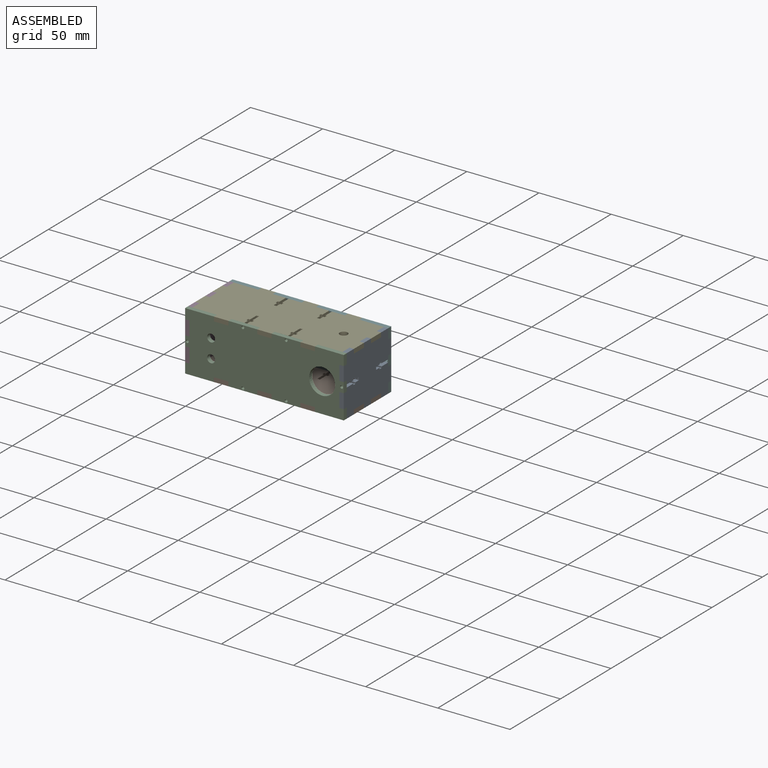
[diagram: assembled view]
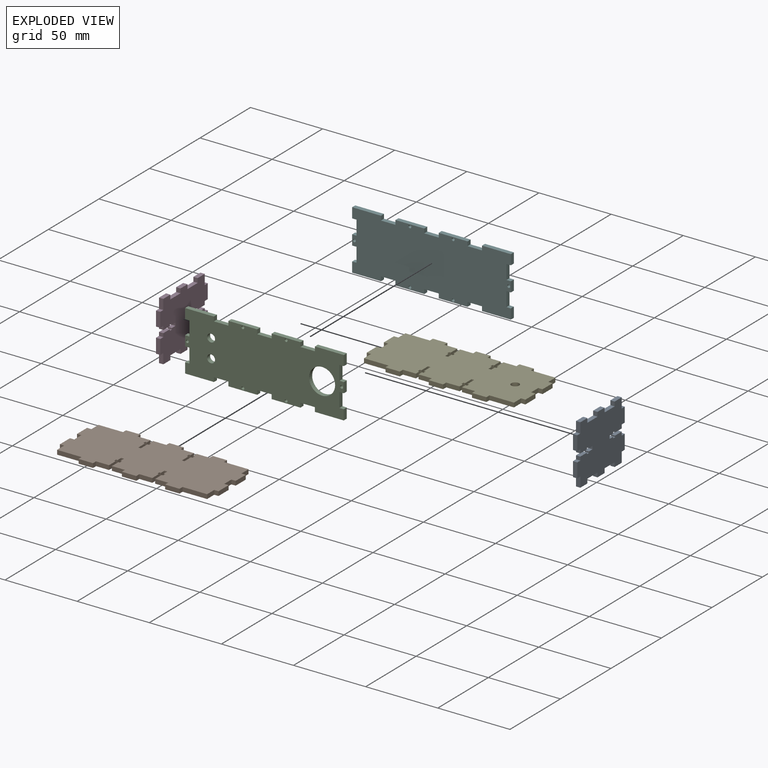
[diagram: exploded view]
GUIDED TOUR — MATED ASSEMBLY (Onshape document a1cde08430a154bda091c33c, AutoMate assembly a1cde08430a154bda091c33c_72b9e4adab7d334c28b5a0ce_06aeb45ed848af241ee4c1e9_default)

This assembly has 6 components, labeled P0..P5 below (a component is one placed occurrence of a part; the same part can appear more than once), held together by 5 mates. A mate is a constraint between two components; its type names the relative motion it leaves free:
  FASTENED — locks the two components together rigidly (no relative motion).
Axis/direction vectors are unit vectors and 'through' points are millimeter coordinates, both in the assembly's world frame.

MATES
  1. FASTENED "Fastened 5": P2 <-> P1, direction (0.000, 1.000, 0.000) through (-33.03, -67.44, 5.51) mm
  2. FASTENED "Fastened 2": P4 <-> P5, direction (1.000, 0.000, 0.000) through (-103.03, -20.44, 43.51) mm
  3. FASTENED "Fastened 4": P3 <-> P5, direction (1.000, 0.000, 0.000) through (-120.03, -20.44, 12.51) mm
  4. FASTENED "Fastened 3": P1 <-> P5, direction (0.000, 1.000, 0.000) through (-103.03, -20.44, 8.51) mm
  5. FASTENED "Fastened 1": P0 <-> P5, direction (-1.000, 0.000, 0.000) through (-16.03, -20.44, 12.51) mm

ASSEMBLY ORDER
  1. P2 — the base component [order verified]
  2. P3 [order verified]
  3. P1 [order verified]
  4. P4 [order verified]
  5. P5 [order verified]
  6. P0 [order verified]
Order-tag legend:
  [order verified] — this step's position reverses a verified removal order: the component was checked to insert without passing through the ones already placed.

Of the 6 components, 6 carry the full construction recipe — the FeatureScript program that regenerates the part's solid from scratch; the rest are supplied as boundary geometry only.
Each toured component is shown spotlighted twice — in the assembled view, then in the exploded view, where a leader line traces a displaced component back to its assembled socket (saturated green if recipe-attached, orange if geometry-only; every other component desaturated gray) — followed by its recipe or geometry summary and the mates that hold it.
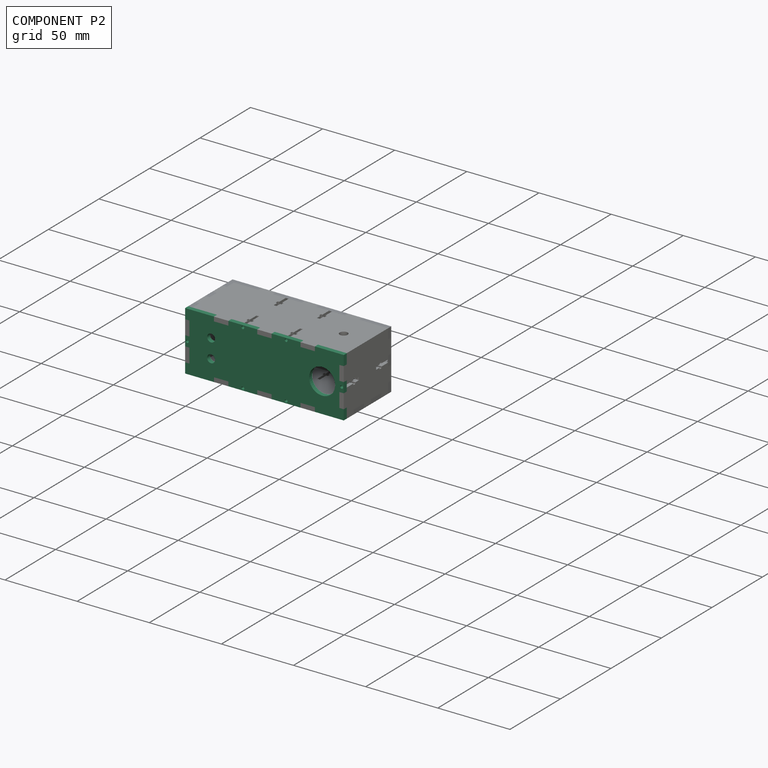
[diagram: component P2 — assembled]
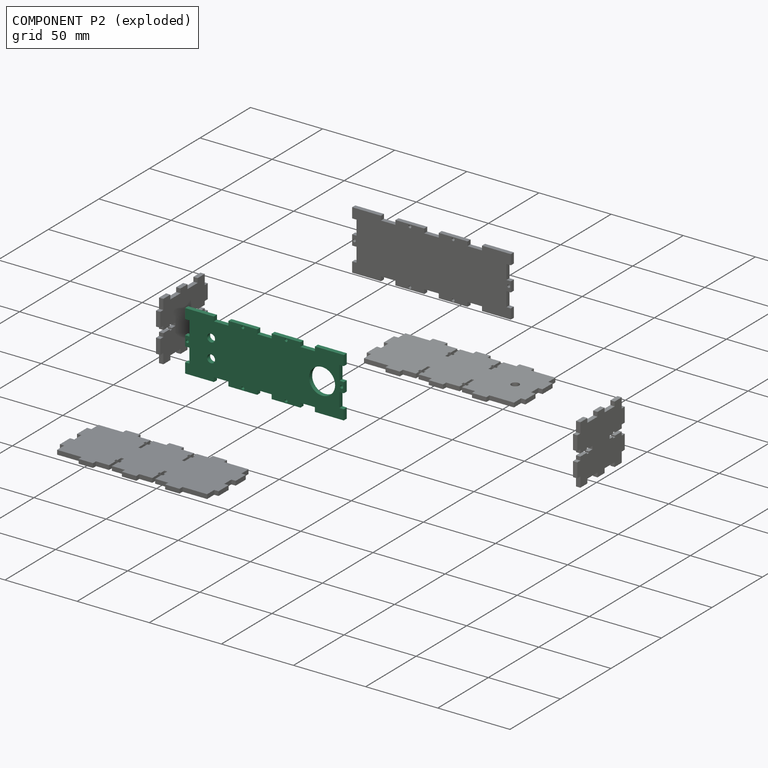
[diagram: component P2 — exploded]
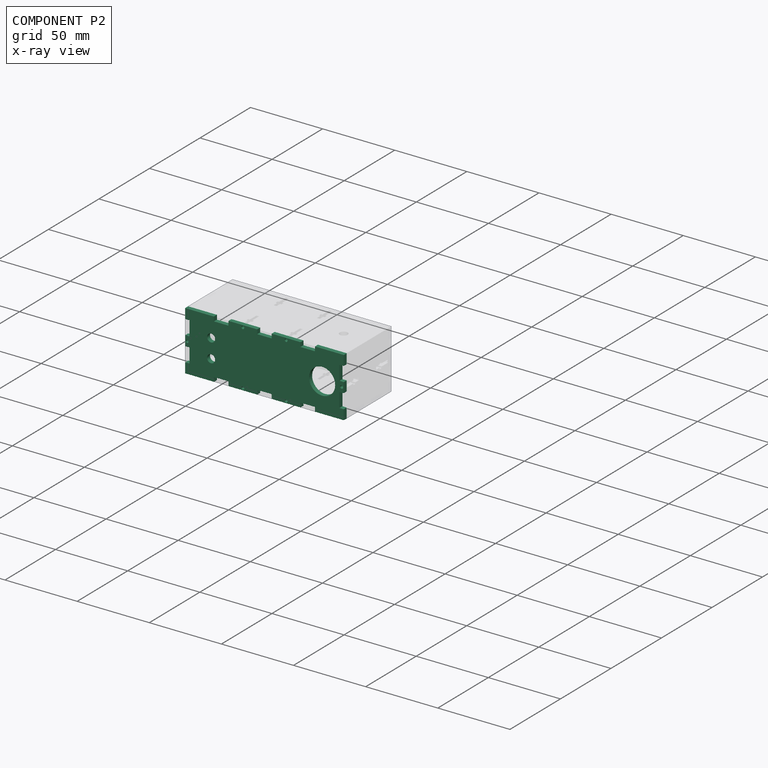
[diagram: component P2 — x-ray view]
COMPONENT P2 — recipe-attached (CADFS 00235639, mesh-verified: the recipe's output STEP matches this component's geometry to below the mesh-comparison resolution (tessellation chordal tolerance ~0.176 mm)).
Held by: FASTENED mate "Fastened 5" to P1.
Construction recipe (FeatureScript — the CAD program that rebuilds this solid; sketch coordinates are in the units given by the * unit suffixes, e.g. mm):

FeatureScript 1511;
import(path : "onshape/std/geometry.fs", version : "1511.0");
import(path : "onshape/std/common.fs", version : "1511.0");
const mm = millimeter;
const VERTEX = EntityType.VERTEX;
const EDGE = EntityType.EDGE;
const FACE = EntityType.FACE;
const BODY = EntityType.BODY;
function v(x, y){return vector(x, y);}
function OD(order){return orderDisambiguation(order);}
function OSD(set){return originalSetDisambiguation(set);}
function TD(topology){return topologyDisambiguation(topology);}
function TDD(query){return trueDependencyDisambiguation(query);}
function sQuery(a, b, c) {return sketchEntityQuery(a, b, c);}

annotation { "Feature Type Name" : "Feature", "Feature Type Description" : "" }
export const myFeature = defineFeature(function(context is Context, id is Id, definition is map)
    precondition{}
    {
        {
            var Q0;
            Q0=qCreatedBy(makeId("Front.planeOp"),FACE);
            var sketch = newSketch(context, id + "F0", { "sketchPlane" : qUnion([Q0])});
            skLineSegment(sketch, "E0", {"start": v(54.92, -20.79) * mm, "end": v(54.92, -13.79) * mm});
            skLineSegment(sketch, "E1", {"start": v(54.92, -13.79) * mm, "end": v(51.92, -13.79) * mm});
            skLineSegment(sketch, "E2", {"start": v(51.92, -13.79) * mm, "end": v(51.92, -3.79) * mm});
            skLineSegment(sketch, "E3", {"start": v(51.92, -3.79) * mm, "end": v(54.92, -3.79) * mm});
            skLineSegment(sketch, "E4", {"start": v(54.92, -3.79) * mm, "end": v(54.92, 3.21) * mm});
            skLineSegment(sketch, "E5", {"start": v(54.92, 3.21) * mm, "end": v(51.92, 3.21) * mm});
            skLineSegment(sketch, "E6", {"start": v(51.92, 3.21) * mm, "end": v(51.92, 13.21) * mm});
            skLineSegment(sketch, "E7", {"start": v(51.92, 13.21) * mm, "end": v(54.92, 13.21) * mm});
            skLineSegment(sketch, "E8", {"start": v(54.92, 13.21) * mm, "end": v(54.92, 20.21) * mm});
            skLineSegment(sketch, "E9", {"start": v(54.92, 20.21) * mm, "end": v(34.92, 20.21) * mm});
            skLineSegment(sketch, "E10", {"start": v(34.92, 20.21) * mm, "end": v(34.92, 17.21) * mm});
            skLineSegment(sketch, "E11", {"start": v(34.92, 17.21) * mm, "end": v(24.92, 17.21) * mm});
            skLineSegment(sketch, "E12", {"start": v(24.92, 17.21) * mm, "end": v(24.92, 20.21) * mm});
            skLineSegment(sketch, "E13", {"start": v(24.92, 20.21) * mm, "end": v(4.92, 20.21) * mm});
            skLineSegment(sketch, "E14", {"start": v(4.92, 20.21) * mm, "end": v(4.92, 17.21) * mm});
            skLineSegment(sketch, "E15", {"start": v(4.92, 17.21) * mm, "end": v(-0.08, 17.21) * mm});
            skLineSegment(sketch, "E16", {"start": v(54.92, -20.79) * mm, "end": v(34.92, -20.79) * mm});
            skLineSegment(sketch, "E17", {"start": v(34.92, -20.79) * mm, "end": v(34.92, -17.79) * mm});
            skLineSegment(sketch, "E18", {"start": v(34.92, -17.79) * mm, "end": v(24.92, -17.79) * mm});
            skLineSegment(sketch, "E19", {"start": v(24.92, -17.79) * mm, "end": v(24.92, -20.79) * mm});
            skLineSegment(sketch, "E20", {"start": v(24.92, -20.79) * mm, "end": v(4.92, -20.79) * mm});
            skLineSegment(sketch, "E21", {"start": v(4.92, -17.79) * mm, "end": v(-0.08, -17.79) * mm});
            skLineSegment(sketch, "E22", {"start": v(4.92, -17.79) * mm, "end": v(4.92, -20.79) * mm});
            skLineSegment(sketch, "E23", {"start": v(-0.08, 17.21) * mm, "end": v(-0.08, -17.79) * mm, "construction": true});
            skLineSegment(sketch, "E24.MirrorCS", {"start": v(-5.08, 17.21) * mm, "end": v(-0.08, 17.21) * mm});
            skLineSegment(sketch, "E25.MirrorCS", {"start": v(-5.08, -17.79) * mm, "end": v(-0.08, -17.79) * mm});
            skLineSegment(sketch, "E26.MirrorCS", {"start": v(-5.08, 20.21) * mm, "end": v(-5.08, 17.21) * mm});
            skLineSegment(sketch, "E27.MirrorCS", {"start": v(-5.08, -17.79) * mm, "end": v(-5.08, -20.79) * mm});
            skLineSegment(sketch, "E28.MirrorCS", {"start": v(-25.08, -17.79) * mm, "end": v(-25.08, -20.79) * mm});
            skLineSegment(sketch, "E29.MirrorCS", {"start": v(-25.08, 17.21) * mm, "end": v(-25.08, 20.21) * mm});
            skLineSegment(sketch, "E30.MirrorCS", {"start": v(-55.08, -13.79) * mm, "end": v(-52.08, -13.79) * mm});
            skLineSegment(sketch, "E31.MirrorCS", {"start": v(-35.08, -20.79) * mm, "end": v(-35.08, -17.79) * mm});
            skLineSegment(sketch, "E32.MirrorCS", {"start": v(-52.08, -3.79) * mm, "end": v(-55.08, -3.79) * mm});
            skLineSegment(sketch, "E33.MirrorCS", {"start": v(-55.08, 3.21) * mm, "end": v(-52.08, 3.21) * mm});
            skLineSegment(sketch, "E34.MirrorCS", {"start": v(-52.08, 13.21) * mm, "end": v(-55.08, 13.21) * mm});
            skLineSegment(sketch, "E35.MirrorCS", {"start": v(-35.08, 20.21) * mm, "end": v(-35.08, 17.21) * mm});
            skLineSegment(sketch, "E36.MirrorCS", {"start": v(-25.08, -20.79) * mm, "end": v(-5.08, -20.79) * mm});
            skLineSegment(sketch, "E37.MirrorCS", {"start": v(-55.08, -20.79) * mm, "end": v(-35.08, -20.79) * mm});
            skLineSegment(sketch, "E38.MirrorCS", {"start": v(-55.08, -3.79) * mm, "end": v(-55.08, 3.21) * mm});
            skLineSegment(sketch, "E39.MirrorCS", {"start": v(-55.08, -20.79) * mm, "end": v(-55.08, -13.79) * mm});
            skLineSegment(sketch, "E40.MirrorCS", {"start": v(-25.08, 20.21) * mm, "end": v(-5.08, 20.21) * mm});
            skLineSegment(sketch, "E41.MirrorCS", {"start": v(-35.08, -17.79) * mm, "end": v(-25.08, -17.79) * mm});
            skLineSegment(sketch, "E42.MirrorCS", {"start": v(-55.08, 20.21) * mm, "end": v(-35.08, 20.21) * mm});
            skLineSegment(sketch, "E43.MirrorCS", {"start": v(-55.08, 13.21) * mm, "end": v(-55.08, 20.21) * mm});
            skLineSegment(sketch, "E44.MirrorCS", {"start": v(-52.08, -13.79) * mm, "end": v(-52.08, -3.79) * mm});
            skLineSegment(sketch, "E45.MirrorCS", {"start": v(-35.08, 17.21) * mm, "end": v(-25.08, 17.21) * mm});
            skLineSegment(sketch, "E46.MirrorCS", {"start": v(-52.08, 3.21) * mm, "end": v(-52.08, 13.21) * mm});
            skPoint(sketch, "E47.centerSnap0", {"position": v(-53.58, 3.21) * mm});
            skPoint(sketch, "E47.centerSnap1", {"position": v(-55.08, -0.29) * mm});
            skPoint(sketch, "E48.centerSnap0", {"position": v(-15.08, -20.79) * mm});
            skPoint(sketch, "E48.centerSnap1", {"position": v(-25.08, -19.29) * mm});
            skPoint(sketch, "E49.centerSnap0", {"position": v(4.92, -19.29) * mm});
            skPoint(sketch, "E49.centerSnap1", {"position": v(14.92, -20.79) * mm});
            skPoint(sketch, "E50.centerSnap0", {"position": v(-5.08, 18.71) * mm});
            skPoint(sketch, "E50.centerSnap1", {"position": v(-15.08, 20.21) * mm});
            skCircle(sketch, "E51", {"center": v(-15.08, 18.71) * mm, "radius": 1 * mm});
            skCircle(sketch, "E52", {"center": v(53.42, -0.29) * mm, "radius": 1 * mm});
            skPoint(sketch, "E52.centerSnap0", {"position": v(54.92, -0.29) * mm});
            skPoint(sketch, "E52.centerSnap1", {"position": v(53.42, -3.79) * mm});
            skPoint(sketch, "E53.centerSnap0", {"position": v(4.92, 18.71) * mm});
            skPoint(sketch, "E53.centerSnap1", {"position": v(14.92, 20.21) * mm});
            skCircle(sketch, "E54", {"center": v(14.92, 18.71) * mm, "radius": 1 * mm});
            skPoint(sketch, "E54.centerSnap0", {"position": v(24.92, 18.71) * mm});
            skCircle(sketch, "E55", {"center": v(-53.58, -0.29) * mm, "radius": 1 * mm});
            skCircle(sketch, "E56", {"center": v(-15.08, -19.29) * mm, "radius": 1 * mm});
            skCircle(sketch, "E57", {"center": v(14.92, -19.29) * mm, "radius": 1 * mm});
            skCircle(sketch, "E58", {"center": v(39.92, -0.29) * mm, "radius": 9 * mm});
            skCircle(sketch, "E59", {"center": v(-37.08, -6.79) * mm, "radius": 2.75 * mm});
            skCircle(sketch, "E60", {"center": v(-37.08, 6.21) * mm, "radius": 2.75 * mm});
            skSolve(sketch);
        }
        {
            var Q0;
            Q0 = qSketchRegion(id + "F0", true);
            extrude(context, id + "F1", {"entities" : qUnion([Q0]), "depth" : 3 * mm});
        }
    });
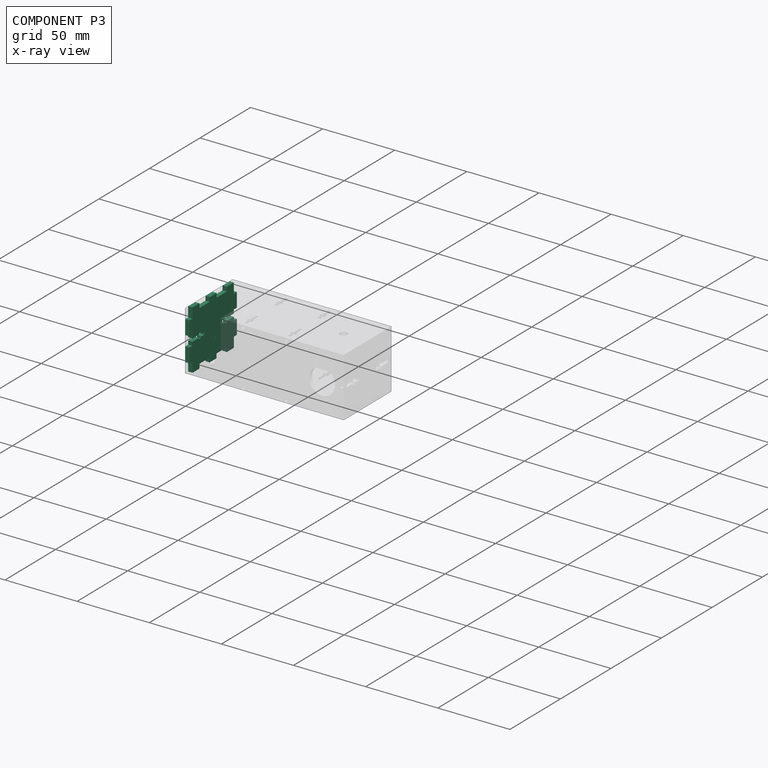
[diagram: component P3 — x-ray view]
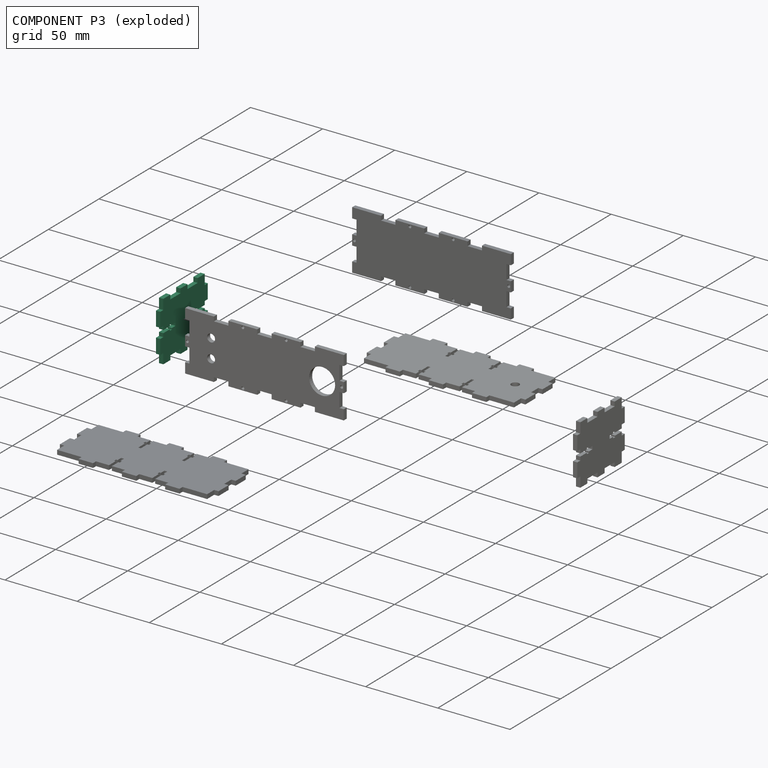
[diagram: component P3 — exploded]
COMPONENT P3 — same part as P0 (CADFS 00235637); its construction recipe is shown at P0.
Held by: FASTENED mate "Fastened 4" to P5.
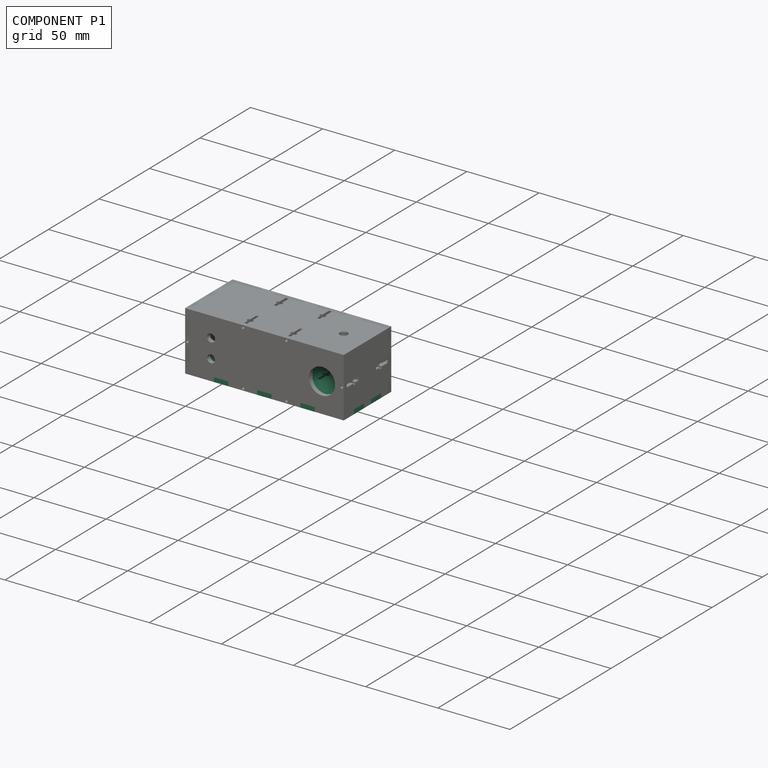
[diagram: component P1 — assembled]
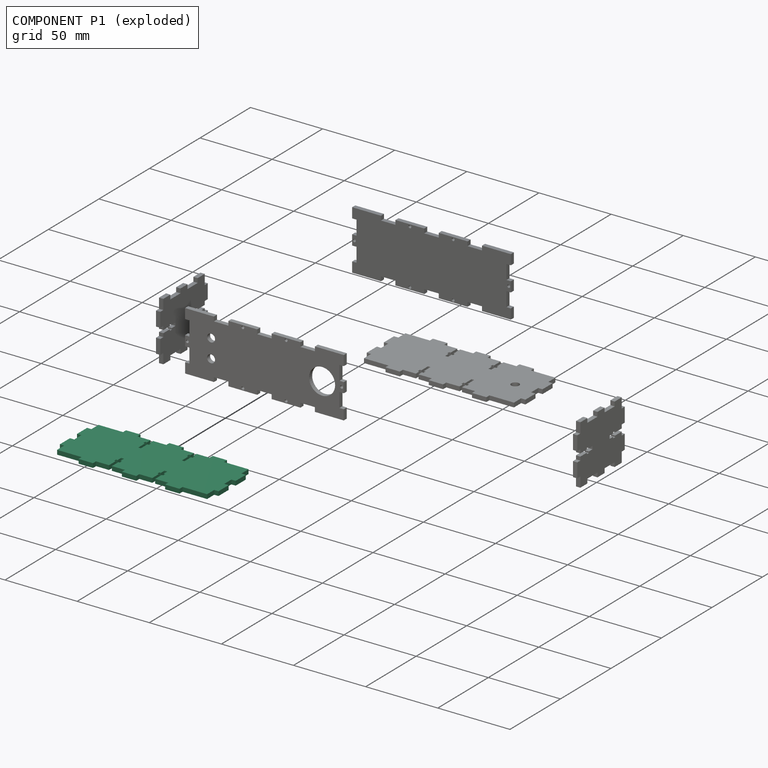
[diagram: component P1 — exploded]
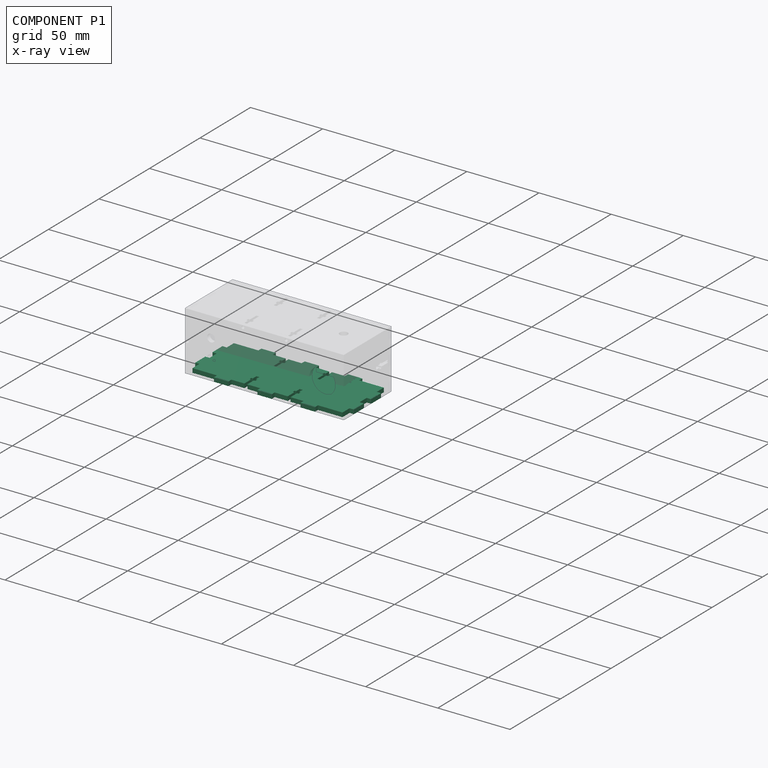
[diagram: component P1 — x-ray view]
COMPONENT P1 — recipe-attached (CADFS 00235641, mesh-verified: the recipe's output STEP matches this component's geometry to below the mesh-comparison resolution (tessellation chordal tolerance ~0.179 mm)).
Held by: FASTENED mate "Fastened 5" to P2; FASTENED mate "Fastened 3" to P5.
Construction recipe (FeatureScript — the CAD program that rebuilds this solid; sketch coordinates are in the units given by the * unit suffixes, e.g. mm):

FeatureScript 1511;
import(path : "onshape/std/geometry.fs", version : "1511.0");
import(path : "onshape/std/common.fs", version : "1511.0");
const mm = millimeter;
const VERTEX = EntityType.VERTEX;
const EDGE = EntityType.EDGE;
const FACE = EntityType.FACE;
const BODY = EntityType.BODY;
function v(x, y){return vector(x, y);}
function OD(order){return orderDisambiguation(order);}
function OSD(set){return originalSetDisambiguation(set);}
function TD(topology){return topologyDisambiguation(topology);}
function TDD(query){return trueDependencyDisambiguation(query);}
function sQuery(a, b, c) {return sketchEntityQuery(a, b, c);}

annotation { "Feature Type Name" : "Feature", "Feature Type Description" : "" }
export const myFeature = defineFeature(function(context is Context, id is Id, definition is map)
    precondition{}
    {
        {
            var Q0;
            Q0=qCreatedBy(makeId("Right.planeOp"),FACE);
            var sketch = newSketch(context, id + "F0", { "sketchPlane" : qUnion([Q0])});
            skLineSegment(sketch, "E0", {"start": v(50.59, -20.79) * mm, "end": v(50.59, -13.79) * mm});
            skLineSegment(sketch, "E1", {"start": v(50.59, -13.79) * mm, "end": v(53.59, -13.79) * mm});
            skLineSegment(sketch, "E2", {"start": v(53.59, -13.79) * mm, "end": v(53.59, -3.79) * mm});
            skLineSegment(sketch, "E3", {"start": v(53.59, -3.79) * mm, "end": v(50.59, -3.79) * mm});
            skLineSegment(sketch, "E4", {"start": v(50.59, -3.79) * mm, "end": v(50.59, 3.21) * mm});
            skLineSegment(sketch, "E5", {"start": v(50.59, 3.21) * mm, "end": v(53.59, 3.21) * mm});
            skLineSegment(sketch, "E6", {"start": v(53.59, 3.21) * mm, "end": v(53.59, 13.21) * mm});
            skLineSegment(sketch, "E7", {"start": v(53.59, 13.21) * mm, "end": v(50.59, 13.21) * mm});
            skLineSegment(sketch, "E8", {"start": v(50.59, 13.21) * mm, "end": v(50.59, 20.21) * mm});
            skLineSegment(sketch, "E9", {"start": v(50.59, 20.21) * mm, "end": v(33.59, 20.21) * mm});
            skLineSegment(sketch, "E10", {"start": v(33.59, 20.21) * mm, "end": v(33.59, 23.21) * mm});
            skLineSegment(sketch, "E11", {"start": v(23.59, 23.21) * mm, "end": v(23.59, 20.21) * mm});
            skLineSegment(sketch, "E12", {"start": v(3.59, 20.21) * mm, "end": v(3.59, 23.21) * mm});
            skLineSegment(sketch, "E13", {"start": v(50.59, -20.79) * mm, "end": v(33.59, -20.79) * mm});
            skLineSegment(sketch, "E14", {"start": v(33.59, -20.79) * mm, "end": v(33.59, -23.79) * mm});
            skLineSegment(sketch, "E15", {"start": v(23.59, -23.79) * mm, "end": v(23.59, -20.79) * mm});
            skLineSegment(sketch, "E16", {"start": v(23.59, -20.79) * mm, "end": v(14.59, -20.79) * mm});
            skLineSegment(sketch, "E17", {"start": v(3.59, -20.79) * mm, "end": v(3.59, -23.79) * mm});
            skLineSegment(sketch, "E18.MirrorCS", {"start": v(-6.41, 20.21) * mm, "end": v(-6.41, 23.21) * mm});
            skLineSegment(sketch, "E19.MirrorCS", {"start": v(-53.41, -13.79) * mm, "end": v(-56.41, -13.79) * mm});
            skLineSegment(sketch, "E20.MirrorCS", {"start": v(-36.41, -20.79) * mm, "end": v(-36.41, -23.79) * mm});
            skLineSegment(sketch, "E21.MirrorCS", {"start": v(-56.41, -3.79) * mm, "end": v(-53.41, -3.79) * mm});
            skLineSegment(sketch, "E22.MirrorCS", {"start": v(-26.41, -23.79) * mm, "end": v(-26.41, -20.79) * mm});
            skLineSegment(sketch, "E23.MirrorCS", {"start": v(-53.41, 3.21) * mm, "end": v(-56.41, 3.21) * mm});
            skLineSegment(sketch, "E24.MirrorCS", {"start": v(-56.41, 13.21) * mm, "end": v(-53.41, 13.21) * mm});
            skLineSegment(sketch, "E25.MirrorCS", {"start": v(-36.41, 20.21) * mm, "end": v(-36.41, 23.21) * mm});
            skLineSegment(sketch, "E26.MirrorCS", {"start": v(-26.41, 23.21) * mm, "end": v(-26.41, 20.21) * mm});
            skLineSegment(sketch, "E27.MirrorCS", {"start": v(-6.41, -20.79) * mm, "end": v(-6.41, -23.79) * mm});
            skLineSegment(sketch, "E28.MirrorCS", {"start": v(-53.41, -20.79) * mm, "end": v(-36.41, -20.79) * mm});
            skLineSegment(sketch, "E29.MirrorCS", {"start": v(-53.41, -20.79) * mm, "end": v(-53.41, -13.79) * mm});
            skLineSegment(sketch, "E30.MirrorCS", {"start": v(-26.41, 20.21) * mm, "end": v(-17.41, 20.21) * mm});
            skLineSegment(sketch, "E31.MirrorCS", {"start": v(-56.41, -13.79) * mm, "end": v(-56.41, -3.79) * mm});
            skLineSegment(sketch, "E32.MirrorCS", {"start": v(-36.41, -23.79) * mm, "end": v(-26.41, -23.79) * mm});
            skLineSegment(sketch, "E33.MirrorCS", {"start": v(-26.41, -20.79) * mm, "end": v(-17.41, -20.79) * mm});
            skLineSegment(sketch, "E34.MirrorCS", {"start": v(-53.41, -3.79) * mm, "end": v(-53.41, 3.21) * mm});
            skLineSegment(sketch, "E35.MirrorCS", {"start": v(-56.41, 3.21) * mm, "end": v(-56.41, 13.21) * mm});
            skLineSegment(sketch, "E36.MirrorCS", {"start": v(-53.41, 13.21) * mm, "end": v(-53.41, 20.21) * mm});
            skLineSegment(sketch, "E37.MirrorCS", {"start": v(-53.41, 20.21) * mm, "end": v(-36.41, 20.21) * mm});
            skLineSegment(sketch, "E38.MirrorCS", {"start": v(-36.41, 23.21) * mm, "end": v(-26.41, 23.21) * mm});
            skPoint(sketch, "E39.centerSnap0", {"position": v(50.59, -0.29) * mm});
            skPoint(sketch, "E39.centerSnap1", {"position": v(42.09, -20.79) * mm});
            skLineSegment(sketch, "E40.top", {"start": v(-17.41, 8.21) * mm, "end": v(-15.63, 8.21) * mm});
            skLineSegment(sketch, "E41", {"start": v(-6.41, -23.79) * mm, "end": v(3.59, -23.79) * mm});
            skLineSegment(sketch, "E42", {"start": v(33.59, -23.79) * mm, "end": v(23.59, -23.79) * mm});
            skLineSegment(sketch, "E43", {"start": v(-6.41, 23.21) * mm, "end": v(3.59, 23.21) * mm});
            skLineSegment(sketch, "E44.trimOffspring", {"start": v(-15.63, 20.21) * mm, "end": v(-6.41, 20.21) * mm});
            skLineSegment(sketch, "E45.MirrorCS", {"start": v(-18.41, -12.29) * mm, "end": v(-17.41, -12.29) * mm});
            skLineSegment(sketch, "E46.MirrorCS", {"start": v(-18.41, -14.29) * mm, "end": v(-17.41, -14.29) * mm});
            skLineSegment(sketch, "E47.MirrorCS", {"start": v(-14.41, -14.29) * mm, "end": v(-14.41, -12.29) * mm});
            skLineSegment(sketch, "E48.MirrorCS", {"start": v(-15.41, -12.29) * mm, "end": v(-14.41, -12.29) * mm});
            skLineSegment(sketch, "E49.MirrorCS", {"start": v(-17.41, -8.79) * mm, "end": v(-15.41, -8.79) * mm});
            skLineSegment(sketch, "E50.MirrorCS", {"start": v(-15.41, -14.29) * mm, "end": v(-14.41, -14.29) * mm});
            skLineSegment(sketch, "E51.MirrorCS", {"start": v(-15.41, -12.29) * mm, "end": v(-15.41, -8.79) * mm});
            skLineSegment(sketch, "E52.MirrorCS", {"start": v(-17.41, -12.29) * mm, "end": v(-17.41, -8.79) * mm});
            skLineSegment(sketch, "E53.MirrorCS", {"start": v(-17.41, -20.79) * mm, "end": v(-17.41, -14.29) * mm});
            skLineSegment(sketch, "E54.MirrorCS", {"start": v(-15.41, -20.79) * mm, "end": v(-15.41, -14.29) * mm});
            skLineSegment(sketch, "E55", {"start": v(23.59, 23.21) * mm, "end": v(33.59, 23.21) * mm});
            skLineSegment(sketch, "E56.MirrorCS", {"start": v(11.59, -14.29) * mm, "end": v(11.59, -12.29) * mm});
            skLineSegment(sketch, "E57.MirrorCS", {"start": v(12.59, -14.29) * mm, "end": v(11.59, -14.29) * mm});
            skLineSegment(sketch, "E58.MirrorCS", {"start": v(15.59, -14.29) * mm, "end": v(14.59, -14.29) * mm});
            skLineSegment(sketch, "E59.MirrorCS", {"start": v(12.59, -12.29) * mm, "end": v(11.59, -12.29) * mm});
            skLineSegment(sketch, "E60.MirrorCS", {"start": v(14.59, -8.79) * mm, "end": v(12.59, -8.79) * mm});
            skLineSegment(sketch, "E61.MirrorCS", {"start": v(15.59, -12.29) * mm, "end": v(14.59, -12.29) * mm});
            skLineSegment(sketch, "E62.MirrorCS", {"start": v(12.59, -12.29) * mm, "end": v(12.59, -8.79) * mm});
            skLineSegment(sketch, "E63.MirrorCS", {"start": v(14.59, -12.29) * mm, "end": v(14.59, -8.79) * mm});
            skLineSegment(sketch, "E64.MirrorCS", {"start": v(14.59, -20.79) * mm, "end": v(14.59, -14.29) * mm});
            skLineSegment(sketch, "E65.MirrorCS", {"start": v(12.59, -20.79) * mm, "end": v(12.59, -14.29) * mm});
            skLineSegment(sketch, "E66.trimOffspring", {"start": v(-15.41, -20.79) * mm, "end": v(-6.41, -20.79) * mm});
            skLineSegment(sketch, "E67.trimOffspring", {"start": v(12.59, -20.79) * mm, "end": v(3.59, -20.79) * mm});
            skLineSegment(sketch, "E68", {"start": v(-17.41, 20.21) * mm, "end": v(-17.41, 16.71) * mm});
            skLineSegment(sketch, "E69", {"start": v(-15.63, 20.21) * mm, "end": v(-15.63, 16.71) * mm});
            skLineSegment(sketch, "E70.bottom", {"start": v(-18.52, 16.71) * mm, "end": v(-17.41, 16.71) * mm});
            skLineSegment(sketch, "E70.top", {"start": v(-18.52, 14.71) * mm, "end": v(-17.41, 14.71) * mm});
            skLineSegment(sketch, "E70.left", {"start": v(-18.52, 16.71) * mm, "end": v(-18.52, 14.71) * mm});
            skLineSegment(sketch, "E70.right", {"start": v(-14.52, 16.71) * mm, "end": v(-14.52, 14.71) * mm});
            skLineSegment(sketch, "E71.trimOffspring", {"start": v(-17.41, 14.71) * mm, "end": v(-17.41, 8.21) * mm});
            skLineSegment(sketch, "E72.trimOffspring", {"start": v(-15.63, 14.71) * mm, "end": v(-15.63, 8.21) * mm});
            skLineSegment(sketch, "E73.trimOffspring", {"start": v(-15.63, 14.71) * mm, "end": v(-14.52, 14.71) * mm});
            skLineSegment(sketch, "E74.trimOffspring", {"start": v(-15.63, 16.71) * mm, "end": v(-14.52, 16.71) * mm});
            skLineSegment(sketch, "E75.MirrorCS", {"start": v(15.7, 14.71) * mm, "end": v(14.59, 14.71) * mm});
            skLineSegment(sketch, "E76.MirrorCS", {"start": v(15.7, 16.71) * mm, "end": v(14.59, 16.71) * mm});
            skLineSegment(sketch, "E77.MirrorCS", {"start": v(12.8, 16.71) * mm, "end": v(11.7, 16.71) * mm});
            skLineSegment(sketch, "E78.MirrorCS", {"start": v(12.8, 14.71) * mm, "end": v(11.7, 14.71) * mm});
            skLineSegment(sketch, "E79.MirrorCS", {"start": v(14.59, 8.21) * mm, "end": v(12.8, 8.21) * mm});
            skLineSegment(sketch, "E80.MirrorCS", {"start": v(14.59, 14.71) * mm, "end": v(14.59, 8.21) * mm});
            skLineSegment(sketch, "E81.MirrorCS", {"start": v(11.7, 16.71) * mm, "end": v(11.7, 14.71) * mm});
            skLineSegment(sketch, "E82.MirrorCS", {"start": v(12.8, 14.71) * mm, "end": v(12.8, 8.21) * mm});
            skLineSegment(sketch, "E83.MirrorCS", {"start": v(15.7, 16.71) * mm, "end": v(15.7, 14.71) * mm});
            skLineSegment(sketch, "E84.MirrorCS", {"start": v(14.59, 20.21) * mm, "end": v(14.59, 16.71) * mm});
            skLineSegment(sketch, "E85", {"start": v(15.59, -14.29) * mm, "end": v(15.59, -12.29) * mm});
            skLineSegment(sketch, "E86", {"start": v(-18.41, -12.29) * mm, "end": v(-18.41, -14.29) * mm});
            skLineSegment(sketch, "E87", {"start": v(12.8, 16.71) * mm, "end": v(12.8, 20.13) * mm});
            skLineSegment(sketch, "E88", {"start": v(23.59, 20.21) * mm, "end": v(14.59, 20.21) * mm});
            skLineSegment(sketch, "E89", {"start": v(3.59, 20.21) * mm, "end": v(12.8, 20.13) * mm});
            skSolve(sketch);
        }
        {
            var Q0;
            Q0=makeQuery(id+"F0.imprint","IMPRINT",FACE,{"disambiguationData":[TD([[makeQuery(id+"F0.imprint","IMPRINT",EDGE,{"derivedFrom":sQuery(id+"F0.wireOp",EDGE,"E0")}),1.0]])]});
            extrude(context, id + "F1", {"entities" : qUnion([Q0]), "depth" : 3 * mm});
        }
    });
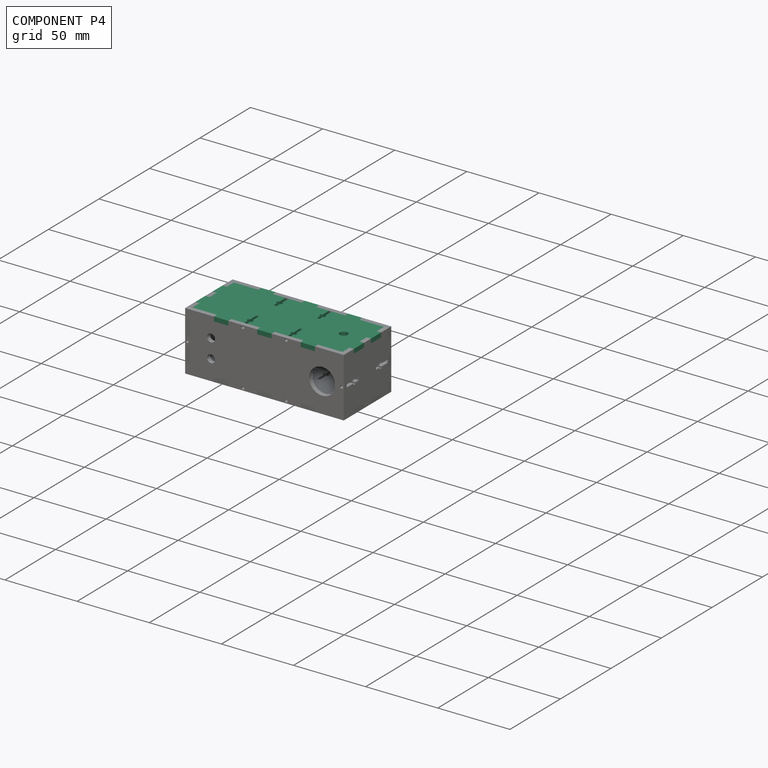
[diagram: component P4 — assembled]
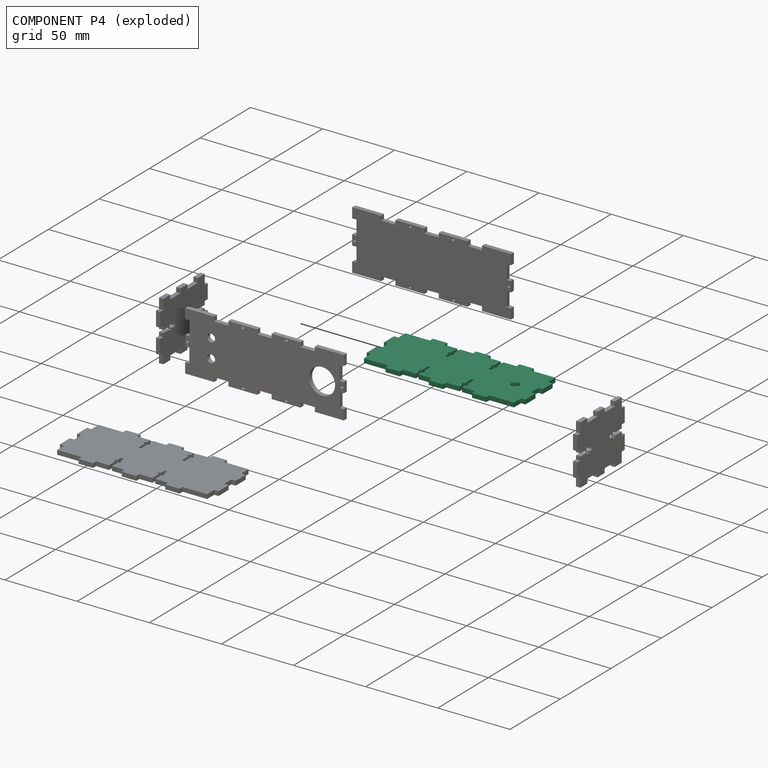
[diagram: component P4 — exploded]
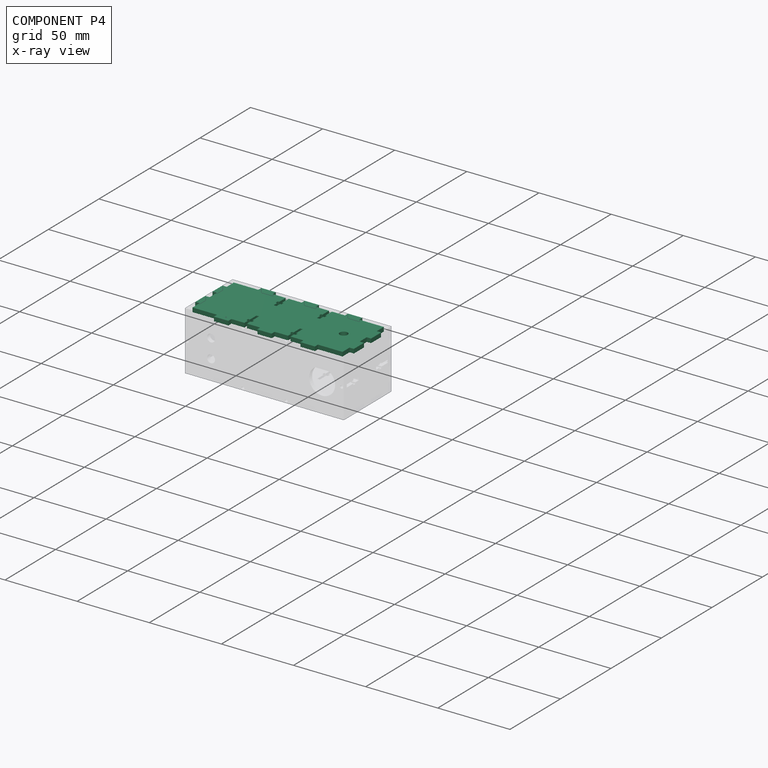
[diagram: component P4 — x-ray view]
COMPONENT P4 — recipe-attached (CADFS 00235640, mesh-verified: the recipe's output STEP matches this component's geometry to below the mesh-comparison resolution (tessellation chordal tolerance ~0.179 mm)).
Held by: FASTENED mate "Fastened 2" to P5.
Construction recipe (FeatureScript — the CAD program that rebuilds this solid; sketch coordinates are in the units given by the * unit suffixes, e.g. mm):

FeatureScript 1511;
import(path : "onshape/std/geometry.fs", version : "1511.0");
import(path : "onshape/std/common.fs", version : "1511.0");
const mm = millimeter;
const VERTEX = EntityType.VERTEX;
const EDGE = EntityType.EDGE;
const FACE = EntityType.FACE;
const BODY = EntityType.BODY;
function v(x, y){return vector(x, y);}
function OD(order){return orderDisambiguation(order);}
function OSD(set){return originalSetDisambiguation(set);}
function TD(topology){return topologyDisambiguation(topology);}
function TDD(query){return trueDependencyDisambiguation(query);}
function sQuery(a, b, c) {return sketchEntityQuery(a, b, c);}

annotation { "Feature Type Name" : "Feature", "Feature Type Description" : "" }
export const myFeature = defineFeature(function(context is Context, id is Id, definition is map)
    precondition{}
    {
        {
            var Q0;
            Q0=qCreatedBy(makeId("Front.planeOp"),FACE);
            var sketch = newSketch(context, id + "F0", { "sketchPlane" : qUnion([Q0])});
            skLineSegment(sketch, "E0", {"start": v(0, 0) * mm, "end": v(0, 7) * mm});
            skLineSegment(sketch, "E1", {"start": v(0, 7) * mm, "end": v(3, 7) * mm});
            skLineSegment(sketch, "E2", {"start": v(3, 7) * mm, "end": v(3, 17) * mm});
            skLineSegment(sketch, "E3", {"start": v(3, 17) * mm, "end": v(0, 17) * mm});
            skLineSegment(sketch, "E4", {"start": v(0, 17) * mm, "end": v(0, 24) * mm});
            skLineSegment(sketch, "E5", {"start": v(0, 24) * mm, "end": v(3, 24) * mm});
            skLineSegment(sketch, "E6", {"start": v(3, 24) * mm, "end": v(3, 34) * mm});
            skLineSegment(sketch, "E7", {"start": v(3, 34) * mm, "end": v(0, 34) * mm});
            skLineSegment(sketch, "E8", {"start": v(0, 34) * mm, "end": v(0, 41) * mm});
            skLineSegment(sketch, "E9", {"start": v(0, 41) * mm, "end": v(-17, 41) * mm});
            skLineSegment(sketch, "E10", {"start": v(-17, 41) * mm, "end": v(-17, 44) * mm});
            skLineSegment(sketch, "E11", {"start": v(-27, 44) * mm, "end": v(-27, 41) * mm});
            skLineSegment(sketch, "E12", {"start": v(-47, 41) * mm, "end": v(-47, 44) * mm});
            skLineSegment(sketch, "E13", {"start": v(0, 0) * mm, "end": v(-17, 0) * mm});
            skLineSegment(sketch, "E14", {"start": v(-17, 0) * mm, "end": v(-17, -3) * mm});
            skLineSegment(sketch, "E15", {"start": v(-27, -3) * mm, "end": v(-27, 0) * mm});
            skLineSegment(sketch, "E16", {"start": v(-27, 0) * mm, "end": v(-36, 0) * mm});
            skLineSegment(sketch, "E17", {"start": v(-47, 0) * mm, "end": v(-47, -3) * mm});
            skLineSegment(sketch, "E18.MirrorCS", {"start": v(-57, 41) * mm, "end": v(-57, 44) * mm});
            skLineSegment(sketch, "E19.MirrorCS", {"start": v(-104, 7) * mm, "end": v(-107, 7) * mm});
            skLineSegment(sketch, "E20.MirrorCS", {"start": v(-87, 0) * mm, "end": v(-87, -3) * mm});
            skLineSegment(sketch, "E21.MirrorCS", {"start": v(-107, 17) * mm, "end": v(-104, 17) * mm});
            skLineSegment(sketch, "E22.MirrorCS", {"start": v(-77, -3) * mm, "end": v(-77, 0) * mm});
            skLineSegment(sketch, "E23.MirrorCS", {"start": v(-104, 24) * mm, "end": v(-107, 24) * mm});
            skLineSegment(sketch, "E24.MirrorCS", {"start": v(-107, 34) * mm, "end": v(-104, 34) * mm});
            skLineSegment(sketch, "E25.MirrorCS", {"start": v(-87, 41) * mm, "end": v(-87, 44) * mm});
            skLineSegment(sketch, "E26.MirrorCS", {"start": v(-77, 44) * mm, "end": v(-77, 41) * mm});
            skLineSegment(sketch, "E27.MirrorCS", {"start": v(-57, 0) * mm, "end": v(-57, -3) * mm});
            skLineSegment(sketch, "E28.MirrorCS", {"start": v(-104, 0) * mm, "end": v(-87, 0) * mm});
            skLineSegment(sketch, "E29.MirrorCS", {"start": v(-104, 0) * mm, "end": v(-104, 7) * mm});
            skLineSegment(sketch, "E30.MirrorCS", {"start": v(-77, 41) * mm, "end": v(-68, 41) * mm});
            skLineSegment(sketch, "E31.MirrorCS", {"start": v(-107, 7) * mm, "end": v(-107, 17) * mm});
            skLineSegment(sketch, "E32.MirrorCS", {"start": v(-87, -3) * mm, "end": v(-77, -3) * mm});
            skLineSegment(sketch, "E33.MirrorCS", {"start": v(-77, 0) * mm, "end": v(-68, 0) * mm});
            skLineSegment(sketch, "E34.MirrorCS", {"start": v(-104, 17) * mm, "end": v(-104, 24) * mm});
            skLineSegment(sketch, "E35.MirrorCS", {"start": v(-107, 24) * mm, "end": v(-107, 34) * mm});
            skLineSegment(sketch, "E36.MirrorCS", {"start": v(-104, 34) * mm, "end": v(-104, 41) * mm});
            skLineSegment(sketch, "E37.MirrorCS", {"start": v(-104, 41) * mm, "end": v(-87, 41) * mm});
            skLineSegment(sketch, "E38.MirrorCS", {"start": v(-87, 44) * mm, "end": v(-77, 44) * mm});
            skPoint(sketch, "E39.centerSnap0", {"position": v(0, 20.5) * mm});
            skPoint(sketch, "E39.centerSnap1", {"position": v(-8.5, 0) * mm});
            skLineSegment(sketch, "E40.top", {"start": v(-68, 29) * mm, "end": v(-66.22, 29) * mm});
            skLineSegment(sketch, "E41", {"start": v(-57, -3) * mm, "end": v(-47, -3) * mm});
            skLineSegment(sketch, "E42", {"start": v(-17, -3) * mm, "end": v(-27, -3) * mm});
            skLineSegment(sketch, "E43", {"start": v(-57, 44) * mm, "end": v(-47, 44) * mm});
            skLineSegment(sketch, "E44.trimOffspring", {"start": v(-66.22, 41) * mm, "end": v(-57, 41) * mm});
            skLineSegment(sketch, "E45.MirrorCS", {"start": v(-69, 8.5) * mm, "end": v(-68, 8.5) * mm});
            skLineSegment(sketch, "E46.MirrorCS", {"start": v(-69, 6.5) * mm, "end": v(-68, 6.5) * mm});
            skLineSegment(sketch, "E47.MirrorCS", {"start": v(-65, 6.5) * mm, "end": v(-65, 8.5) * mm});
            skLineSegment(sketch, "E48.MirrorCS", {"start": v(-66, 8.5) * mm, "end": v(-65, 8.5) * mm});
            skLineSegment(sketch, "E49.MirrorCS", {"start": v(-68, 12) * mm, "end": v(-66, 12) * mm});
            skLineSegment(sketch, "E50.MirrorCS", {"start": v(-66, 6.5) * mm, "end": v(-65, 6.5) * mm});
            skLineSegment(sketch, "E51.MirrorCS", {"start": v(-66, 8.5) * mm, "end": v(-66, 12) * mm});
            skLineSegment(sketch, "E52.MirrorCS", {"start": v(-68, 8.5) * mm, "end": v(-68, 12) * mm});
            skLineSegment(sketch, "E53.MirrorCS", {"start": v(-68, 0) * mm, "end": v(-68, 6.5) * mm});
            skLineSegment(sketch, "E54.MirrorCS", {"start": v(-66, 0) * mm, "end": v(-66, 6.5) * mm});
            skLineSegment(sketch, "E55", {"start": v(-27, 44) * mm, "end": v(-17, 44) * mm});
            skLineSegment(sketch, "E56.MirrorCS", {"start": v(-39, 6.5) * mm, "end": v(-39, 8.5) * mm});
            skLineSegment(sketch, "E57.MirrorCS", {"start": v(-38, 6.5) * mm, "end": v(-39, 6.5) * mm});
            skLineSegment(sketch, "E58.MirrorCS", {"start": v(-35, 6.5) * mm, "end": v(-36, 6.5) * mm});
            skLineSegment(sketch, "E59.MirrorCS", {"start": v(-38, 8.5) * mm, "end": v(-39, 8.5) * mm});
            skLineSegment(sketch, "E60.MirrorCS", {"start": v(-36, 12) * mm, "end": v(-38, 12) * mm});
            skLineSegment(sketch, "E61.MirrorCS", {"start": v(-35, 8.5) * mm, "end": v(-36, 8.5) * mm});
            skLineSegment(sketch, "E62.MirrorCS", {"start": v(-38, 8.5) * mm, "end": v(-38, 12) * mm});
            skLineSegment(sketch, "E63.MirrorCS", {"start": v(-36, 8.5) * mm, "end": v(-36, 12) * mm});
            skLineSegment(sketch, "E64.MirrorCS", {"start": v(-36, 0) * mm, "end": v(-36, 6.5) * mm});
            skLineSegment(sketch, "E65.MirrorCS", {"start": v(-38, 0) * mm, "end": v(-38, 6.5) * mm});
            skLineSegment(sketch, "E66.trimOffspring", {"start": v(-66, 0) * mm, "end": v(-57, 0) * mm});
            skLineSegment(sketch, "E67.trimOffspring", {"start": v(-38, 0) * mm, "end": v(-47, 0) * mm});
            skLineSegment(sketch, "E68", {"start": v(-68, 41) * mm, "end": v(-68, 37.5) * mm});
            skLineSegment(sketch, "E69", {"start": v(-66.22, 41) * mm, "end": v(-66.22, 37.5) * mm});
            skLineSegment(sketch, "E70.bottom", {"start": v(-69.1, 37.5) * mm, "end": v(-68, 37.5) * mm});
            skLineSegment(sketch, "E70.top", {"start": v(-69.1, 35.5) * mm, "end": v(-68, 35.5) * mm});
            skLineSegment(sketch, "E70.left", {"start": v(-69.1, 37.5) * mm, "end": v(-69.1, 35.5) * mm});
            skLineSegment(sketch, "E70.right", {"start": v(-65.1, 37.5) * mm, "end": v(-65.1, 35.5) * mm});
            skLineSegment(sketch, "E71.trimOffspring", {"start": v(-68, 35.5) * mm, "end": v(-68, 29) * mm});
            skLineSegment(sketch, "E72.trimOffspring", {"start": v(-66.22, 35.5) * mm, "end": v(-66.22, 29) * mm});
            skLineSegment(sketch, "E73.trimOffspring", {"start": v(-66.22, 35.5) * mm, "end": v(-65.1, 35.5) * mm});
            skLineSegment(sketch, "E74.trimOffspring", {"start": v(-66.22, 37.5) * mm, "end": v(-65.1, 37.5) * mm});
            skLineSegment(sketch, "E75.MirrorCS", {"start": v(-34.9, 35.5) * mm, "end": v(-36, 35.5) * mm});
            skLineSegment(sketch, "E76.MirrorCS", {"start": v(-34.9, 37.5) * mm, "end": v(-36, 37.5) * mm});
            skLineSegment(sketch, "E77.MirrorCS", {"start": v(-37.78, 37.5) * mm, "end": v(-38.9, 37.5) * mm});
            skLineSegment(sketch, "E78.MirrorCS", {"start": v(-37.78, 35.5) * mm, "end": v(-38.9, 35.5) * mm});
            skLineSegment(sketch, "E79.MirrorCS", {"start": v(-36, 29) * mm, "end": v(-37.78, 29) * mm});
            skLineSegment(sketch, "E80.MirrorCS", {"start": v(-36, 35.5) * mm, "end": v(-36, 29) * mm});
            skLineSegment(sketch, "E81.MirrorCS", {"start": v(-38.9, 37.5) * mm, "end": v(-38.9, 35.5) * mm});
            skLineSegment(sketch, "E82.MirrorCS", {"start": v(-37.78, 35.5) * mm, "end": v(-37.78, 29) * mm});
            skLineSegment(sketch, "E83.MirrorCS", {"start": v(-34.9, 37.5) * mm, "end": v(-34.9, 35.5) * mm});
            skLineSegment(sketch, "E84.MirrorCS", {"start": v(-36, 41) * mm, "end": v(-36, 37.5) * mm});
            skLineSegment(sketch, "E85", {"start": v(-35, 6.5) * mm, "end": v(-35, 8.5) * mm});
            skLineSegment(sketch, "E86", {"start": v(-69, 8.5) * mm, "end": v(-69, 6.5) * mm});
            skLineSegment(sketch, "E87", {"start": v(-37.78, 37.5) * mm, "end": v(-37.78, 40.92) * mm});
            skLineSegment(sketch, "E88", {"start": v(-27, 41) * mm, "end": v(-36, 41) * mm});
            skLineSegment(sketch, "E89", {"start": v(-47, 41) * mm, "end": v(-37.78, 40.92) * mm});
            skCircle(sketch, "E90", {"center": v(-13.5, 20.5) * mm, "radius": 2.75 * mm});
            skSolve(sketch);
        }
        {
            var Q0;
            Q0 = qSketchRegion(id + "F0", true);
            extrude(context, id + "F1", {"entities" : qUnion([Q0]), "depth" : 3 * mm});
        }
    });
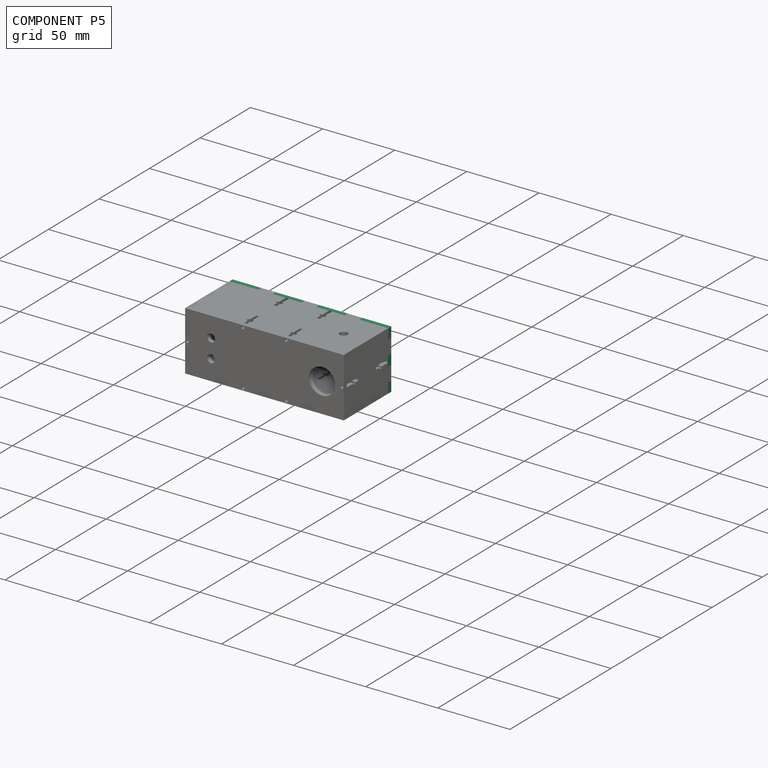
[diagram: component P5 — assembled]
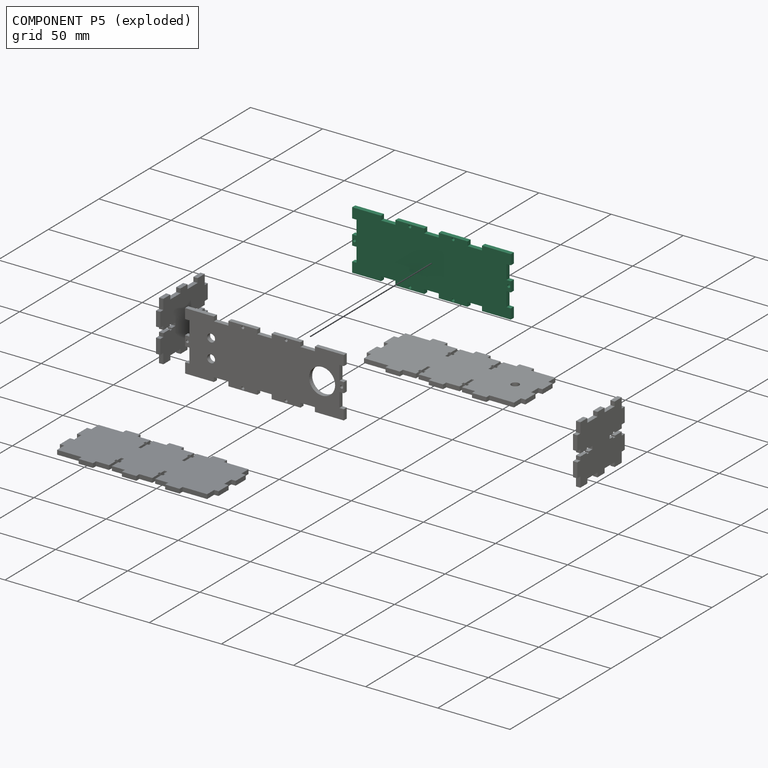
[diagram: component P5 — exploded]
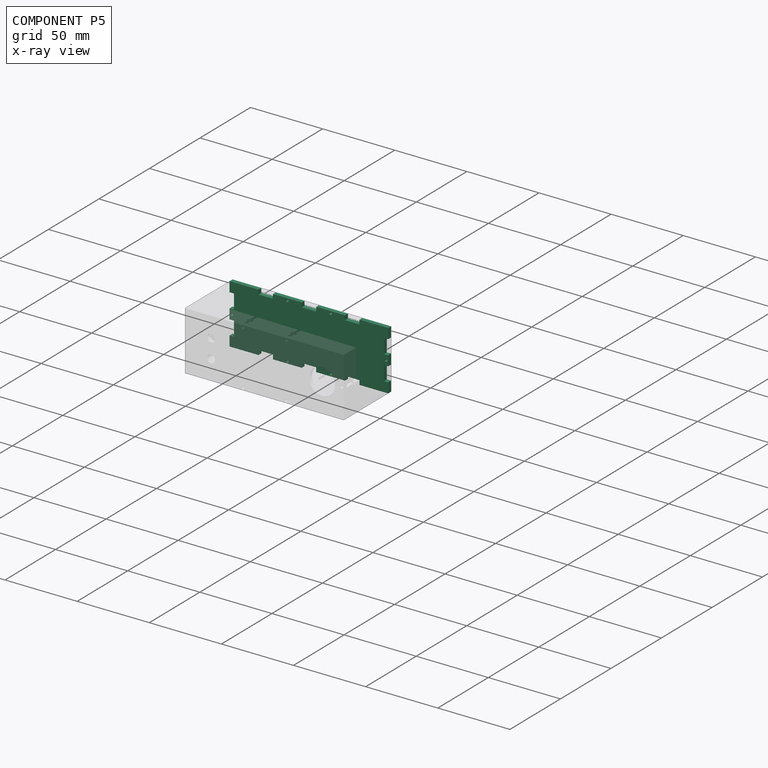
[diagram: component P5 — x-ray view]
COMPONENT P5 — recipe-attached (CADFS 00235638, mesh-verified: the recipe's output STEP matches this component's geometry to below the mesh-comparison resolution (tessellation chordal tolerance ~0.176 mm)).
Held by: FASTENED mate "Fastened 2" to P4; FASTENED mate "Fastened 4" to P3; FASTENED mate "Fastened 3" to P1; FASTENED mate "Fastened 1" to P0.
Construction recipe (FeatureScript — the CAD program that rebuilds this solid; sketch coordinates are in the units given by the * unit suffixes, e.g. mm):

FeatureScript 1511;
import(path : "onshape/std/geometry.fs", version : "1511.0");
import(path : "onshape/std/common.fs", version : "1511.0");
const mm = millimeter;
const VERTEX = EntityType.VERTEX;
const EDGE = EntityType.EDGE;
const FACE = EntityType.FACE;
const BODY = EntityType.BODY;
function v(x, y){return vector(x, y);}
function OD(order){return orderDisambiguation(order);}
function OSD(set){return originalSetDisambiguation(set);}
function TD(topology){return topologyDisambiguation(topology);}
function TDD(query){return trueDependencyDisambiguation(query);}
function sQuery(a, b, c) {return sketchEntityQuery(a, b, c);}

annotation { "Feature Type Name" : "Feature", "Feature Type Description" : "" }
export const myFeature = defineFeature(function(context is Context, id is Id, definition is map)
    precondition{}
    {
        {
            var Q0;
            Q0=qCreatedBy(makeId("Front.planeOp"),FACE);
            var sketch = newSketch(context, id + "F0", { "sketchPlane" : qUnion([Q0])});
            skLineSegment(sketch, "E0", {"start": v(0, 0) * mm, "end": v(0, 7) * mm});
            skLineSegment(sketch, "E1", {"start": v(0, 7) * mm, "end": v(-3, 7) * mm});
            skLineSegment(sketch, "E2", {"start": v(-3, 7) * mm, "end": v(-3, 17) * mm});
            skLineSegment(sketch, "E3", {"start": v(-3, 17) * mm, "end": v(0, 17) * mm});
            skLineSegment(sketch, "E4", {"start": v(0, 17) * mm, "end": v(0, 24) * mm});
            skLineSegment(sketch, "E5", {"start": v(0, 24) * mm, "end": v(-3, 24) * mm});
            skLineSegment(sketch, "E6", {"start": v(-3, 24) * mm, "end": v(-3, 34) * mm});
            skLineSegment(sketch, "E7", {"start": v(-3, 34) * mm, "end": v(0, 34) * mm});
            skLineSegment(sketch, "E8", {"start": v(0, 34) * mm, "end": v(0, 41) * mm});
            skLineSegment(sketch, "E9", {"start": v(0, 41) * mm, "end": v(-20, 41) * mm});
            skLineSegment(sketch, "E10", {"start": v(-20, 41) * mm, "end": v(-20, 38) * mm});
            skLineSegment(sketch, "E11", {"start": v(-20, 38) * mm, "end": v(-30, 38) * mm});
            skLineSegment(sketch, "E12", {"start": v(-30, 38) * mm, "end": v(-30, 41) * mm});
            skLineSegment(sketch, "E13", {"start": v(-30, 41) * mm, "end": v(-50, 41) * mm});
            skLineSegment(sketch, "E14", {"start": v(-50, 41) * mm, "end": v(-50, 38) * mm});
            skLineSegment(sketch, "E15", {"start": v(-50, 38) * mm, "end": v(-55, 38) * mm});
            skLineSegment(sketch, "E16", {"start": v(0, 0) * mm, "end": v(-20, 0) * mm});
            skLineSegment(sketch, "E17", {"start": v(-20, 0) * mm, "end": v(-20, 3) * mm});
            skLineSegment(sketch, "E18", {"start": v(-20, 3) * mm, "end": v(-30, 3) * mm});
            skLineSegment(sketch, "E19", {"start": v(-30, 3) * mm, "end": v(-30, 0) * mm});
            skLineSegment(sketch, "E20", {"start": v(-30, 0) * mm, "end": v(-50, 0) * mm});
            skLineSegment(sketch, "E21", {"start": v(-50, 3) * mm, "end": v(-55, 3) * mm});
            skLineSegment(sketch, "E22", {"start": v(-50, 3) * mm, "end": v(-50, 0) * mm});
            skLineSegment(sketch, "E23", {"start": v(-55, 38) * mm, "end": v(-55, 3) * mm, "construction": true});
            skLineSegment(sketch, "E24.MirrorCS", {"start": v(-60, 38) * mm, "end": v(-55, 38) * mm});
            skLineSegment(sketch, "E25.MirrorCS", {"start": v(-60, 3) * mm, "end": v(-55, 3) * mm});
            skLineSegment(sketch, "E26.MirrorCS", {"start": v(-60, 41) * mm, "end": v(-60, 38) * mm});
            skLineSegment(sketch, "E27.MirrorCS", {"start": v(-60, 3) * mm, "end": v(-60, 0) * mm});
            skLineSegment(sketch, "E28.MirrorCS", {"start": v(-80, 3) * mm, "end": v(-80, 0) * mm});
            skLineSegment(sketch, "E29.MirrorCS", {"start": v(-80, 38) * mm, "end": v(-80, 41) * mm});
            skLineSegment(sketch, "E30.MirrorCS", {"start": v(-110, 7) * mm, "end": v(-107, 7) * mm});
            skLineSegment(sketch, "E31.MirrorCS", {"start": v(-90, 0) * mm, "end": v(-90, 3) * mm});
            skLineSegment(sketch, "E32.MirrorCS", {"start": v(-107, 17) * mm, "end": v(-110, 17) * mm});
            skLineSegment(sketch, "E33.MirrorCS", {"start": v(-110, 24) * mm, "end": v(-107, 24) * mm});
            skLineSegment(sketch, "E34.MirrorCS", {"start": v(-107, 34) * mm, "end": v(-110, 34) * mm});
            skLineSegment(sketch, "E35.MirrorCS", {"start": v(-90, 41) * mm, "end": v(-90, 38) * mm});
            skLineSegment(sketch, "E36.MirrorCS", {"start": v(-80, 0) * mm, "end": v(-60, 0) * mm});
            skLineSegment(sketch, "E37.MirrorCS", {"start": v(-110, 0) * mm, "end": v(-90, 0) * mm});
            skLineSegment(sketch, "E38.MirrorCS", {"start": v(-110, 17) * mm, "end": v(-110, 24) * mm});
            skLineSegment(sketch, "E39.MirrorCS", {"start": v(-110, 0) * mm, "end": v(-110, 7) * mm});
            skLineSegment(sketch, "E40.MirrorCS", {"start": v(-80, 41) * mm, "end": v(-60, 41) * mm});
            skLineSegment(sketch, "E41.MirrorCS", {"start": v(-90, 3) * mm, "end": v(-80, 3) * mm});
            skLineSegment(sketch, "E42.MirrorCS", {"start": v(-110, 41) * mm, "end": v(-90, 41) * mm});
            skLineSegment(sketch, "E43.MirrorCS", {"start": v(-110, 34) * mm, "end": v(-110, 41) * mm});
            skLineSegment(sketch, "E44.MirrorCS", {"start": v(-107, 7) * mm, "end": v(-107, 17) * mm});
            skLineSegment(sketch, "E45.MirrorCS", {"start": v(-90, 38) * mm, "end": v(-80, 38) * mm});
            skLineSegment(sketch, "E46.MirrorCS", {"start": v(-107, 24) * mm, "end": v(-107, 34) * mm});
            skPoint(sketch, "E47.centerSnap0", {"position": v(-108.5, 24) * mm});
            skPoint(sketch, "E47.centerSnap1", {"position": v(-110, 20.5) * mm});
            skPoint(sketch, "E48.centerSnap0", {"position": v(-70, 0) * mm});
            skPoint(sketch, "E48.centerSnap1", {"position": v(-80, 1.5) * mm});
            skPoint(sketch, "E49.centerSnap0", {"position": v(-50, 1.5) * mm});
            skPoint(sketch, "E49.centerSnap1", {"position": v(-40, 0) * mm});
            skPoint(sketch, "E50.centerSnap0", {"position": v(-60, 39.5) * mm});
            skPoint(sketch, "E50.centerSnap1", {"position": v(-70, 41) * mm});
            skCircle(sketch, "E51", {"center": v(-70, 39.5) * mm, "radius": 1 * mm});
            skCircle(sketch, "E52", {"center": v(-1.5, 20.5) * mm, "radius": 1 * mm});
            skPoint(sketch, "E52.centerSnap0", {"position": v(0, 20.5) * mm});
            skPoint(sketch, "E52.centerSnap1", {"position": v(-1.5, 17) * mm});
            skPoint(sketch, "E53.centerSnap0", {"position": v(-50, 39.5) * mm});
            skPoint(sketch, "E53.centerSnap1", {"position": v(-40, 41) * mm});
            skCircle(sketch, "E54", {"center": v(-40, 39.5) * mm, "radius": 1 * mm});
            skPoint(sketch, "E54.centerSnap0", {"position": v(-30, 39.5) * mm});
            skCircle(sketch, "E55", {"center": v(-108.5, 20.5) * mm, "radius": 1 * mm});
            skCircle(sketch, "E56", {"center": v(-70, 1.5) * mm, "radius": 1 * mm});
            skCircle(sketch, "E57", {"center": v(-40, 1.5) * mm, "radius": 1 * mm});
            skSolve(sketch);
        }
        {
            var Q0;
            Q0=makeQuery(id+"F0.imprint","IMPRINT",FACE,{"disambiguationData":[TD([[makeQuery(id+"F0.imprint","IMPRINT",EDGE,{"derivedFrom":sQuery(id+"F0.wireOp",EDGE,"E0")}),1.0]])]});
            extrude(context, id + "F1", {"entities" : qUnion([Q0]), "depth" : 3 * mm});
        }
    });
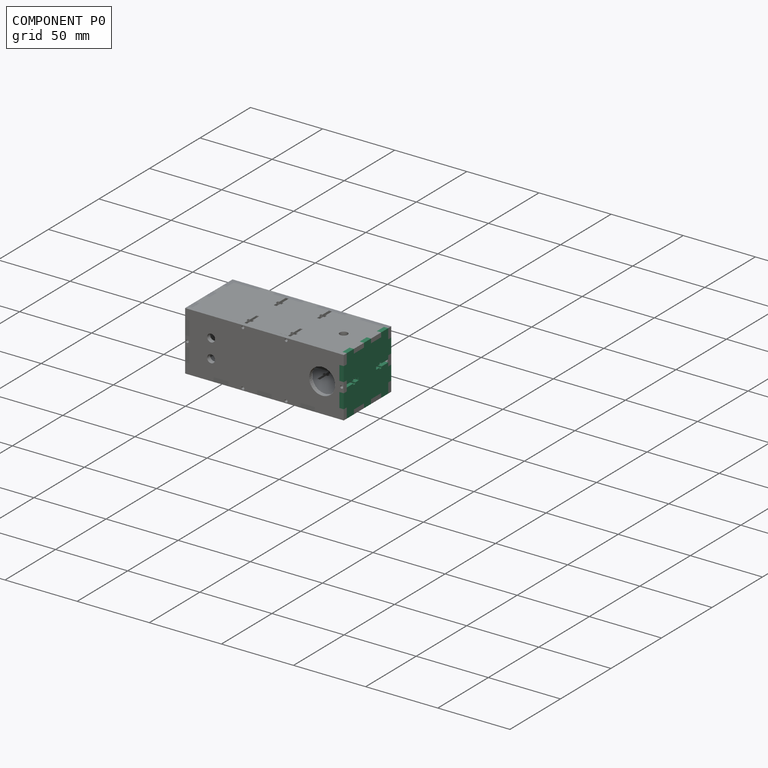
[diagram: component P0 — assembled]
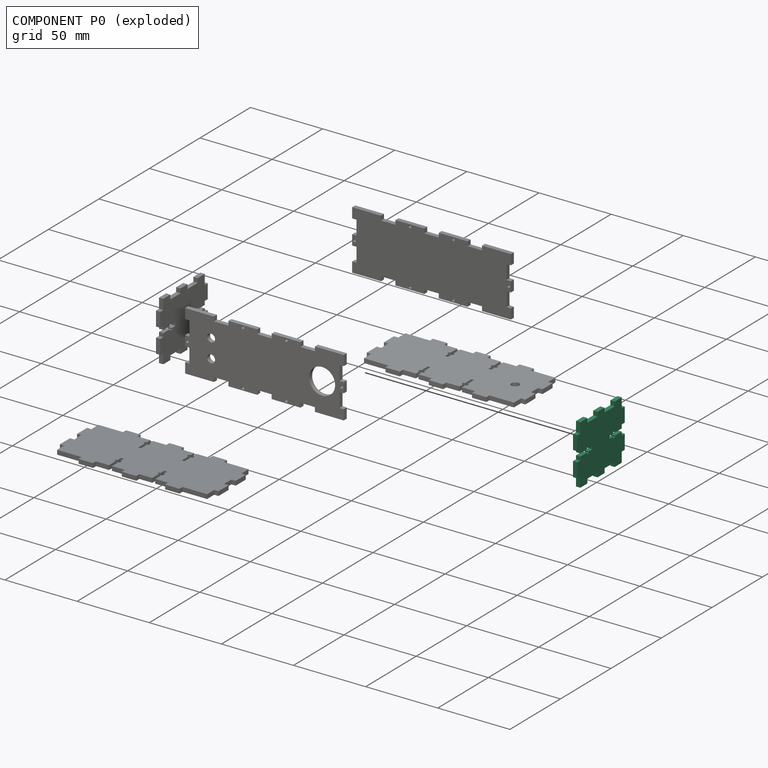
[diagram: component P0 — exploded]
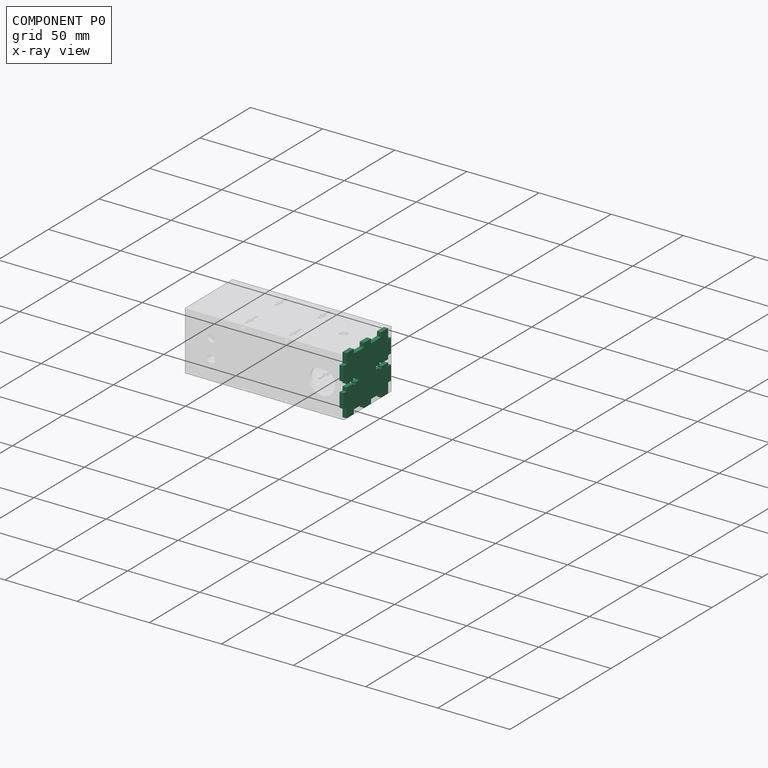
[diagram: component P0 — x-ray view]
COMPONENT P0 — recipe-attached (CADFS 00235637, mesh-verified: the recipe's output STEP matches this component's geometry to below the mesh-comparison resolution (tessellation chordal tolerance ~0.0937 mm)).
Held by: FASTENED mate "Fastened 1" to P5.
Construction recipe (FeatureScript — the CAD program that rebuilds this solid; sketch coordinates are in the units given by the * unit suffixes, e.g. mm):

FeatureScript 1511;
import(path : "onshape/std/geometry.fs", version : "1511.0");
import(path : "onshape/std/common.fs", version : "1511.0");
const mm = millimeter;
const VERTEX = EntityType.VERTEX;
const EDGE = EntityType.EDGE;
const FACE = EntityType.FACE;
const BODY = EntityType.BODY;
function v(x, y){return vector(x, y);}
function OD(order){return orderDisambiguation(order);}
function OSD(set){return originalSetDisambiguation(set);}
function TD(topology){return topologyDisambiguation(topology);}
function TDD(query){return trueDependencyDisambiguation(query);}
function sQuery(a, b, c) {return sketchEntityQuery(a, b, c);}

annotation { "Feature Type Name" : "Feature", "Feature Type Description" : "" }
export const myFeature = defineFeature(function(context is Context, id is Id, definition is map)
    precondition{}
    {
        {
            var Q0;
            Q0=qCreatedBy(makeId("Front.planeOp"),FACE);
            var sketch = newSketch(context, id + "F0", { "sketchPlane" : qUnion([Q0])});
            skLineSegment(sketch, "E0", {"start": v(3, 0) * mm, "end": v(0, 0) * mm});
            skLineSegment(sketch, "E1", {"start": v(3, 0) * mm, "end": v(3, 7) * mm});
            skLineSegment(sketch, "E2", {"start": v(3, 7) * mm, "end": v(0, 7) * mm});
            skLineSegment(sketch, "E3", {"start": v(0, 7) * mm, "end": v(0, 17) * mm});
            skLineSegment(sketch, "E4", {"start": v(0, 17) * mm, "end": v(3, 17) * mm});
            skLineSegment(sketch, "E5", {"start": v(3, 17) * mm, "end": v(3, 24) * mm});
            skLineSegment(sketch, "E6", {"start": v(3, 24) * mm, "end": v(0, 24) * mm});
            skLineSegment(sketch, "E7", {"start": v(0, 24) * mm, "end": v(0, 34) * mm});
            skLineSegment(sketch, "E8", {"start": v(0, 34) * mm, "end": v(3, 34) * mm});
            skLineSegment(sketch, "E9", {"start": v(3, 34) * mm, "end": v(3, 41) * mm});
            skLineSegment(sketch, "E10", {"start": v(3, 41) * mm, "end": v(-4, 41) * mm});
            skLineSegment(sketch, "E11", {"start": v(-4, 41) * mm, "end": v(-4, 44) * mm});
            skLineSegment(sketch, "E12", {"start": v(-4, 44) * mm, "end": v(-14, 44) * mm});
            skLineSegment(sketch, "E13", {"start": v(-14, 44) * mm, "end": v(-14, 41) * mm});
            skLineSegment(sketch, "E14", {"start": v(-14, 41) * mm, "end": v(-16.5, 41) * mm});
            skLineSegment(sketch, "E15", {"start": v(-21, 41) * mm, "end": v(-21, 44) * mm});
            skLineSegment(sketch, "E16", {"start": v(-31, 44) * mm, "end": v(-31, 41) * mm});
            skLineSegment(sketch, "E17", {"start": v(-31, 41) * mm, "end": v(-38, 41) * mm});
            skLineSegment(sketch, "E18", {"start": v(-38, 41) * mm, "end": v(-38, 34) * mm});
            skLineSegment(sketch, "E19", {"start": v(-38, 34) * mm, "end": v(-35, 34) * mm});
            skLineSegment(sketch, "E20", {"start": v(-35, 24) * mm, "end": v(-35, 34) * mm});
            skLineSegment(sketch, "E21", {"start": v(-35, 24) * mm, "end": v(-38, 24) * mm});
            skLineSegment(sketch, "E22", {"start": v(-31, 44) * mm, "end": v(-21, 44) * mm});
            skLineSegment(sketch, "E23", {"start": v(-38, 24) * mm, "end": v(-38, 17) * mm});
            skLineSegment(sketch, "E24", {"start": v(-38, 17) * mm, "end": v(-35, 17) * mm});
            skLineSegment(sketch, "E25", {"start": v(-35, 17) * mm, "end": v(-35, 7) * mm});
            skLineSegment(sketch, "E26", {"start": v(-35, 7) * mm, "end": v(-38, 7) * mm});
            skLineSegment(sketch, "E27", {"start": v(-38, 7) * mm, "end": v(-38, 0) * mm});
            skLineSegment(sketch, "E28", {"start": v(-38, 0) * mm, "end": v(-31, 0) * mm});
            skLineSegment(sketch, "E29", {"start": v(-31, 0) * mm, "end": v(-31, -3) * mm});
            skLineSegment(sketch, "E30", {"start": v(-31, -3) * mm, "end": v(-31, 0) * mm});
            skLineSegment(sketch, "E31", {"start": v(-31, -3) * mm, "end": v(-21, -3) * mm});
            skLineSegment(sketch, "E32", {"start": v(-21, -3) * mm, "end": v(-21, 0) * mm});
            skLineSegment(sketch, "E33", {"start": v(-21, 0) * mm, "end": v(-18.5, 0) * mm});
            skLineSegment(sketch, "E34", {"start": v(-14, 0) * mm, "end": v(-14, -3) * mm});
            skLineSegment(sketch, "E35", {"start": v(-14, -3) * mm, "end": v(-4, -3) * mm});
            skLineSegment(sketch, "E36", {"start": v(-4, -3) * mm, "end": v(-4, 0) * mm});
            skLineSegment(sketch, "E37", {"start": v(-4, 0) * mm, "end": v(3, 0) * mm});
            skLineSegment(sketch, "E38", {"start": v(-17.5, 41) * mm, "end": v(-17.5, 18.94) * mm, "construction": true});
            skLineSegment(sketch, "E39.top", {"start": v(-18.5, 29) * mm, "end": v(-16.5, 29) * mm});
            skLineSegment(sketch, "E39.left", {"start": v(-18.5, 41) * mm, "end": v(-18.5, 34.5) * mm});
            skLineSegment(sketch, "E39.right", {"start": v(-16.5, 41) * mm, "end": v(-16.5, 34.5) * mm});
            skLineSegment(sketch, "E40", {"start": v(-21, 41) * mm, "end": v(-18.5, 41) * mm});
            skLineSegment(sketch, "E41.bottom", {"start": v(-19.5, 34.5) * mm, "end": v(-18.5, 34.5) * mm});
            skLineSegment(sketch, "E41.top", {"start": v(-19.5, 32.5) * mm, "end": v(-18.5, 32.5) * mm});
            skLineSegment(sketch, "E41.left", {"start": v(-19.5, 34.5) * mm, "end": v(-19.5, 32.5) * mm});
            skLineSegment(sketch, "E41.right", {"start": v(-15.5, 34.5) * mm, "end": v(-15.5, 32.5) * mm});
            skLineSegment(sketch, "E42.trimOffspring", {"start": v(-16.5, 34.5) * mm, "end": v(-15.5, 34.5) * mm});
            skLineSegment(sketch, "E43.trimOffspring", {"start": v(-16.5, 32.5) * mm, "end": v(-16.5, 29) * mm});
            skLineSegment(sketch, "E44.trimOffspring", {"start": v(-16.5, 32.5) * mm, "end": v(-15.5, 32.5) * mm});
            skLineSegment(sketch, "E45.trimOffspring", {"start": v(-18.5, 32.5) * mm, "end": v(-18.5, 29) * mm});
            skPoint(sketch, "E46.orphan", {"position": v(-38, 20.5) * mm});
            skLineSegment(sketch, "E47.MirrorCS", {"start": v(-16.5, 8.5) * mm, "end": v(-15.5, 8.5) * mm});
            skLineSegment(sketch, "E48.MirrorCS", {"start": v(-19.5, 8.5) * mm, "end": v(-18.5, 8.5) * mm});
            skLineSegment(sketch, "E49.MirrorCS", {"start": v(-16.5, 6.5) * mm, "end": v(-15.5, 6.5) * mm});
            skLineSegment(sketch, "E50.MirrorCS", {"start": v(-19.5, 6.5) * mm, "end": v(-18.5, 6.5) * mm});
            skLineSegment(sketch, "E51.MirrorCS", {"start": v(-16.5, 8.5) * mm, "end": v(-16.5, 12) * mm});
            skLineSegment(sketch, "E52.MirrorCS", {"start": v(-18.5, 0) * mm, "end": v(-18.5, 6.5) * mm});
            skLineSegment(sketch, "E53.MirrorCS", {"start": v(-18.5, 12) * mm, "end": v(-16.5, 12) * mm});
            skLineSegment(sketch, "E54.MirrorCS", {"start": v(-15.5, 6.5) * mm, "end": v(-15.5, 8.5) * mm});
            skLineSegment(sketch, "E55.MirrorCS", {"start": v(-18.5, 8.5) * mm, "end": v(-18.5, 12) * mm});
            skLineSegment(sketch, "E56.MirrorCS", {"start": v(-16.5, 0) * mm, "end": v(-16.5, 6.5) * mm});
            skLineSegment(sketch, "E57.MirrorCS", {"start": v(-19.5, 6.5) * mm, "end": v(-19.5, 8.5) * mm});
            skLineSegment(sketch, "E58.MirrorCS", {"start": v(-14, 0) * mm, "end": v(-16.5, 0) * mm});
            skLineSegment(sketch, "E59.trimOffspring", {"start": v(-16.5, 0) * mm, "end": v(-14, 0) * mm});
            skSolve(sketch);
        }
        {
            var Q0;
            Q0 = qSketchRegion(id + "F0", true);
            extrude(context, id + "F1", {"entities" : qUnion([Q0]), "depth" : 3 * mm});
        }
    });
PROVENANCE & LICENSES
Assembly (occurrences, transforms, mates, per-part STEP geometry): AutoMate dataset, Zenodo record 7776208, CC0.
Construction recipes: CADFS (HuggingFace VladPyatov/CADFS, CC-BY-4.0, layered over the ABC dataset), FeatureScript reconstruction programs keyed by ABC model id.
Join: ABC meta listings map ABC model id -> Onshape documentId; within a shared document, parts are matched by geometric signature (bounding-box dims + volume at 0.1% relative tolerance, exact B-rep face/solid counts).
Verification: 6 of this assembly's 6 components carry a recipe attachment, and every attachment is mesh-verified: the CADFS STEP and the AutoMate member STEP were compared as meshes in their shared local frame (symmetric sampled-point-to-mesh distance); worst across the 6 attachments: below the mesh-comparison resolution (tessellation chordal tolerance ~0.179 mm) on a 120 mm part.
Renders: orthographic iso camera (az 35 / el 25); the floor grid conveys scale (grid pitch printed in each image; no ruler). In the exploded view each component is displaced by its stored offset vector: the offsets alone carry the explosion direction (mate normal/axis signs are not orientation cues and do not encode it), and separation distances are assigned per mate-chain, not proportionally to assembly-order depth.
